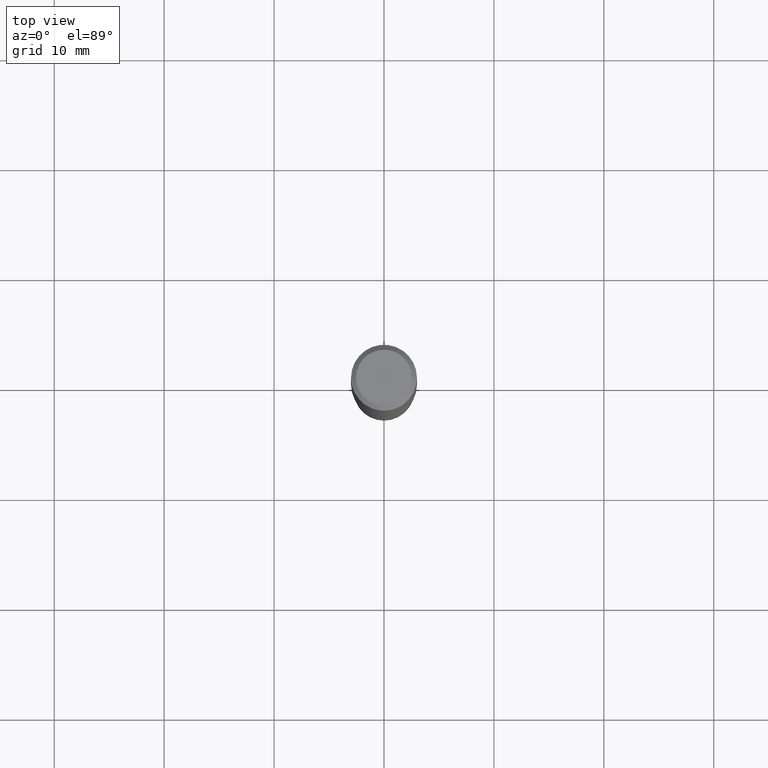
[diagram: clean part render]
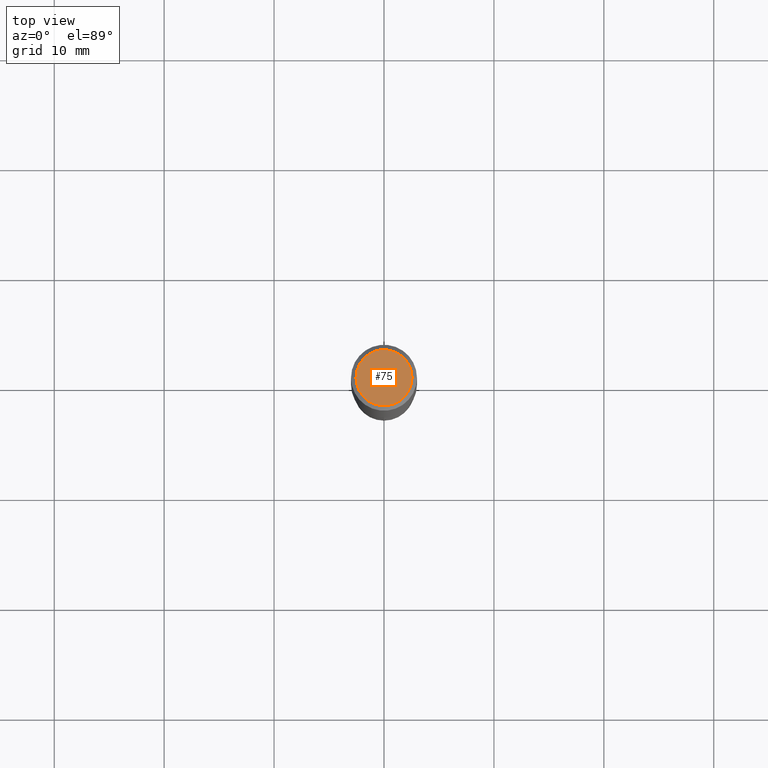
[diagram: same view with one face highlighted and labeled with its STEP entity id]
A machine part, top view. The second image highlights one B-rep face of the part: STEP entity #75.
In plain terms, the highlighted planar face has unit normal (0, -0, -1).
Its self-contained STEP definition (entity closure, byte-faithful):
#10 = EDGE_CURVE ( 'NONE', #452, #426, #289, .T. ) ;
#16 = AXIS2_PLACEMENT_3D ( 'NONE', #118, #190, #339 ) ;
#75 = ADVANCED_FACE ( 'NONE', ( #450 ), #156, .F. ) ;
#92 = DIRECTION ( 'NONE',  ( 1.000000000000000000, -6.982962677686266711E-15, 4.879445411049954809E-29 ) ) ;
#113 = AXIS2_PLACEMENT_3D ( 'NONE', #424, #279, #162 ) ;
#118 = CARTESIAN_POINT ( 'NONE',  ( 4.860842703676779252E-46, -6.939995124049229759E-32, -1.987693603526089945E-17 ) ) ;
#139 = EDGE_CURVE ( 'NONE', #426, #452, #328, .T. ) ;
#156 = PLANE ( 'NONE',  #16 ) ;
#162 = DIRECTION ( 'NONE',  ( 1.000000000000000000, -6.982962677686266711E-15, 4.879445411049954809E-29 ) ) ;
#181 = AXIS2_PLACEMENT_3D ( 'NONE', #395, #208, #92 ) ;
#185 = CARTESIAN_POINT ( 'NONE',  ( -0.1003850000000000159, 7.319105043583386689E-16, -3.975387207052680940E-17 ) ) ;
#190 = DIRECTION ( 'NONE',  ( 2.438088387897960049E-29, -3.491481338843145188E-15, -1.000000000000000000 ) ) ;
#208 = DIRECTION ( 'NONE',  ( -2.445468806185136597E-29, 3.491481338843145583E-15, 1.000000000000000000 ) ) ;
#231 = ORIENTED_EDGE ( 'NONE', *, *, #139, .T. ) ;
#279 = DIRECTION ( 'NONE',  ( -2.445468806185136597E-29, 3.491481338843145583E-15, 1.000000000000000000 ) ) ;
#289 = CIRCLE ( 'NONE', #113, 0.1003850000000000159 ) ;
#319 = CARTESIAN_POINT ( 'NONE',  ( 0.1003850000000000159, -7.803837484803599345E-16, -3.975387207051662201E-17 ) ) ;
#328 = CIRCLE ( 'NONE', #181, 0.1003850000000000159 ) ;
#339 = DIRECTION ( 'NONE',  ( -1.000000000000000000, 6.982962677686265922E-15, -4.876176775795935793E-29 ) ) ;
#382 = ORIENTED_EDGE ( 'NONE', *, *, #10, .T. ) ;
#395 = CARTESIAN_POINT ( 'NONE',  ( 9.721685407353558503E-46, -1.387999024809845952E-31, -3.975387207052179891E-17 ) ) ;
#424 = CARTESIAN_POINT ( 'NONE',  ( 9.721685407353558503E-46, -1.387999024809845952E-31, -3.975387207052179891E-17 ) ) ;
#426 = VERTEX_POINT ( 'NONE', #185 ) ;
#439 = EDGE_LOOP ( 'NONE', ( #231, #382 ) ) ;
#450 = FACE_OUTER_BOUND ( 'NONE', #439, .T. ) ;
#452 = VERTEX_POINT ( 'NONE', #319 ) ;